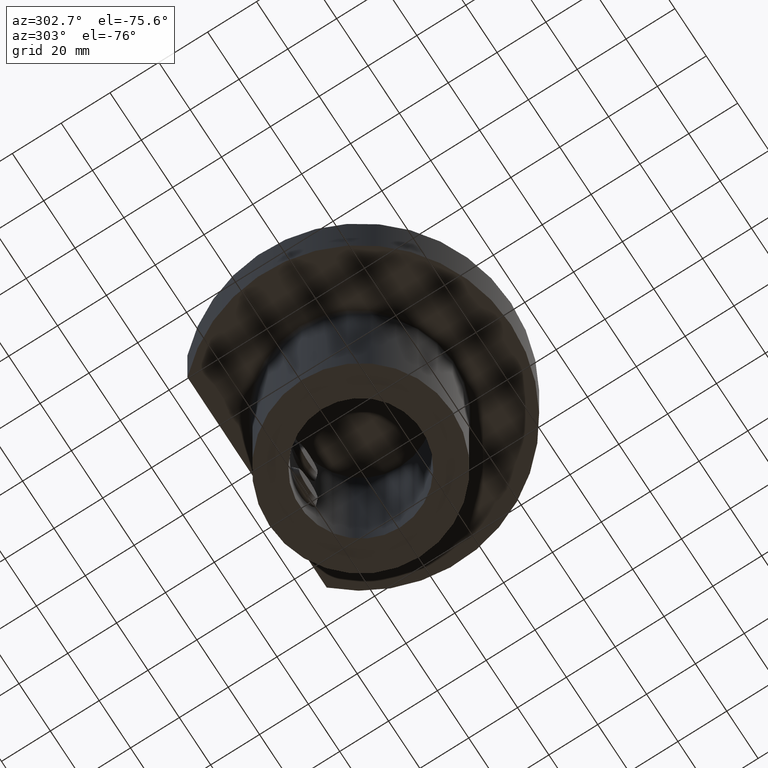
[diagram: clean part render]
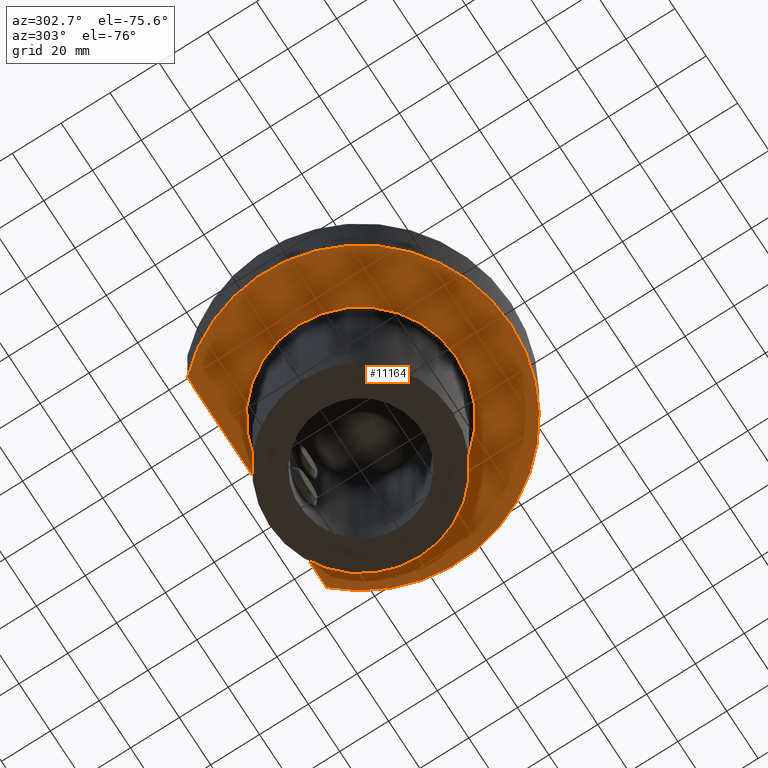
[diagram: same view with one face highlighted and labeled with its STEP entity id]
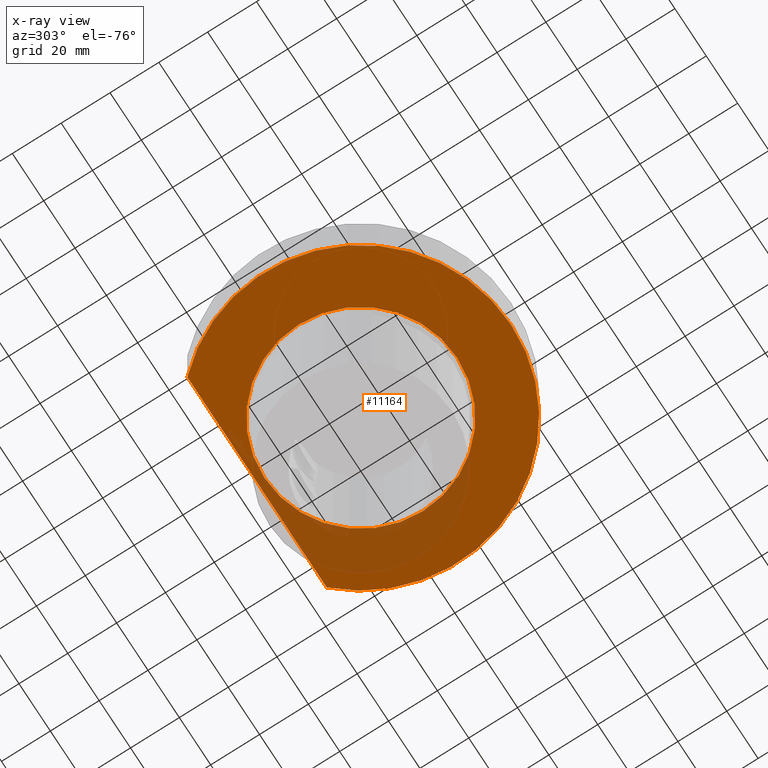
[diagram: x-ray of the same camera — body ghosted, the highlighted face saturated]
A machine part, auxiliary view. The second image highlights one B-rep face of the part: STEP entity #11164.
The next image is the same camera in x-ray: the body ghosted, the highlighted face saturated — about 18% of this face is hidden behind the body in this view.
In plain terms, the highlighted planar face has unit normal (0, 0, 1).
Its self-contained STEP definition (entity closure, byte-faithful):
#213 = EDGE_CURVE ( 'NONE', #10331, #10331, #12996, .T. ) ;
#561 = CARTESIAN_POINT ( 'NONE',  ( 22.22611077089289822, 42.50000000000000000, -30.00000000000000000 ) ) ;
#563 = EDGE_LOOP ( 'NONE', ( #5501 ) ) ;
#826 = VERTEX_POINT ( 'NONE', #4702 ) ;
#1078 = DIRECTION ( 'NONE',  ( 4.440892098500630106E-16, 1.224646799147350002E-16, 1.000000000000000000 ) ) ;
#1314 = CIRCLE ( 'NONE', #3181, 61.50000000000000000 ) ;
#2937 = ORIENTED_EDGE ( 'NONE', *, *, #11681, .F. ) ;
#3059 = FACE_OUTER_BOUND ( 'NONE', #8234, .T. ) ;
#3181 = AXIS2_PLACEMENT_3D ( 'NONE', #10764, #1078, #13231 ) ;
#4032 = AXIS2_PLACEMENT_3D ( 'NONE', #6323, #13147, #6394 ) ;
#4224 = CARTESIAN_POINT ( 'NONE',  ( -1.332267629550189900E-14, -3.673940397442059967E-15, -30.00000000000000000 ) ) ;
#4293 = FACE_BOUND ( 'NONE', #563, .T. ) ;
#4702 = CARTESIAN_POINT ( 'NONE',  ( 44.45222154178569696, 42.50000000000000000, -30.00000000000000000 ) ) ;
#5147 = VECTOR ( 'NONE', #11559, 1000.000000000000000 ) ;
#5384 = DIRECTION ( 'NONE',  ( 4.440892098500630106E-16, 1.224646799147350002E-16, 1.000000000000000000 ) ) ;
#5501 = ORIENTED_EDGE ( 'NONE', *, *, #213, .F. ) ;
#5722 = ORIENTED_EDGE ( 'NONE', *, *, #9682, .F. ) ;
#6178 = CARTESIAN_POINT ( 'NONE',  ( -44.45222154178569696, 42.50000000000000000, -30.00000000000000000 ) ) ;
#6323 = CARTESIAN_POINT ( 'NONE',  ( -1.332267629550189900E-14, -3.673940397442059967E-15, -30.00000000000000000 ) ) ;
#6394 = DIRECTION ( 'NONE',  ( 1.000000000000000000, -4.440892098500630106E-16, -4.391705002472929584E-16 ) ) ;
#6784 = VERTEX_POINT ( 'NONE', #6178 ) ;
#7482 = PLANE ( 'NONE',  #13311 ) ;
#8234 = EDGE_LOOP ( 'NONE', ( #5722, #2937 ) ) ;
#9682 = EDGE_CURVE ( 'NONE', #826, #6784, #10244, .T. ) ;
#10244 = LINE ( 'NONE', #561, #5147 ) ;
#10331 = VERTEX_POINT ( 'NONE', #13682 ) ;
#10764 = CARTESIAN_POINT ( 'NONE',  ( -1.332267629550189900E-14, -3.673940397442059967E-15, -30.00000000000000000 ) ) ;
#11164 = ADVANCED_FACE ( 'Defeature completata1_17', ( #4293, #3059 ), #7482, .F. ) ;
#11559 = DIRECTION ( 'NONE',  ( -1.000000000000000000, 6.438943914347950006E-16, 4.440892098500630106E-16 ) ) ;
#11681 = EDGE_CURVE ( 'NONE', #6784, #826, #1314, .T. ) ;
#11877 = DIRECTION ( 'NONE',  ( 1.000000000000000000, 0.000000000000000000, -4.440892098500630106E-16 ) ) ;
#12996 = CIRCLE ( 'NONE', #4032, 39.50000000000000000 ) ;
#13147 = DIRECTION ( 'NONE',  ( -4.440892098500630106E-16, -1.224646799147350002E-16, -1.000000000000000000 ) ) ;
#13231 = DIRECTION ( 'NONE',  ( -1.000000000000000000, 4.440892098500630106E-16, 4.513101726118522915E-16 ) ) ;
#13311 = AXIS2_PLACEMENT_3D ( 'NONE', #4224, #5384, #11877 ) ;
#13682 = CARTESIAN_POINT ( 'NONE',  ( 39.49999999999998579, -2.121546418651954987E-14, -30.00000000000001776 ) ) ;